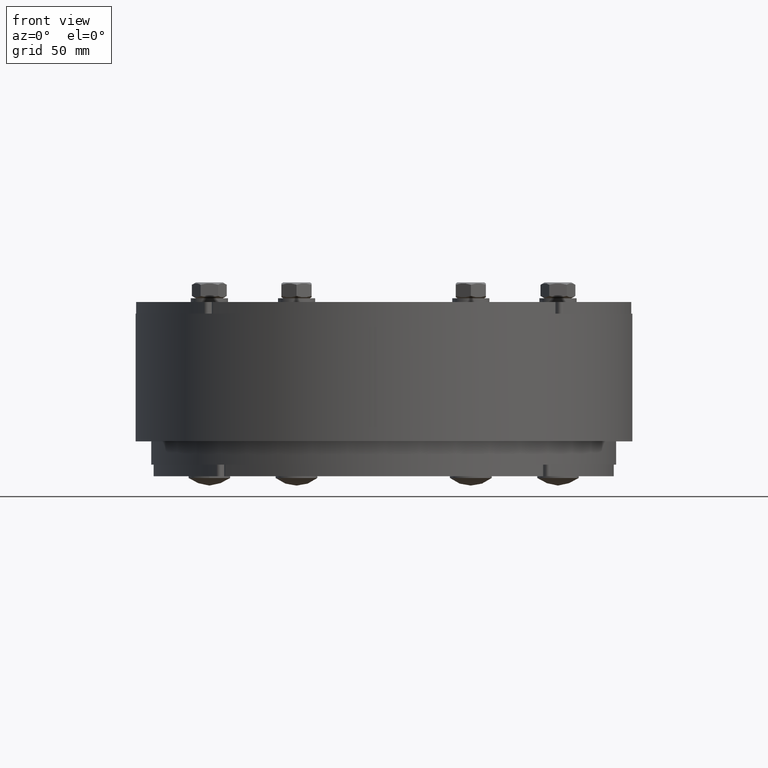
[diagram: clean part render]
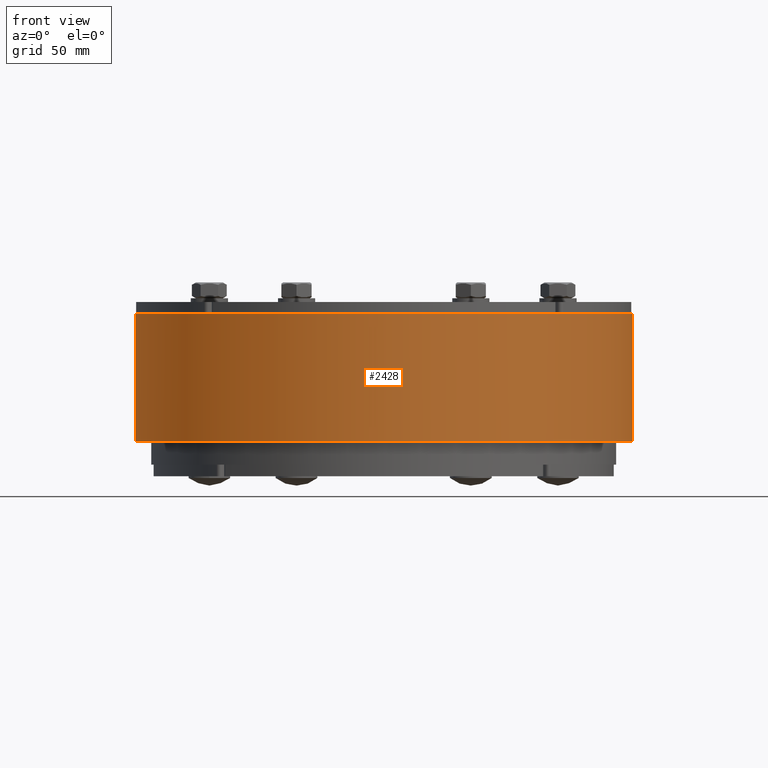
[diagram: same view with one face highlighted and labeled with its STEP entity id]
A machine part, front view. The second image highlights one B-rep face of the part: STEP entity #2428.
In plain terms, the highlighted cylindrical surface (bore or boss wall) has radius 107 mm, axis along (0, 0, -1).
Its self-contained STEP definition (entity closure, byte-faithful):
#2401=CARTESIAN_POINT('',(0.0,0.0,0.0));
#2402=DIRECTION('',(0.0,0.0,-1.0));
#2403=DIRECTION('',(-1.0,0.0,0.0));
#2404=AXIS2_PLACEMENT_3D('',#2401,#2402,#2403);
#2405=CYLINDRICAL_SURFACE('',#2404,107.00000000000001);
#2406=CARTESIAN_POINT('',(107.00000000000001,1.310372E-014,-55.0));
#2407=VERTEX_POINT('',#2406);
#2408=CARTESIAN_POINT('',(0.0,0.0,-55.0));
#2409=DIRECTION('',(0.0,0.0,-1.0));
#2410=DIRECTION('',(-1.0,0.0,0.0));
#2411=AXIS2_PLACEMENT_3D('',#2408,#2409,#2410);
#2412=CIRCLE('',#2411,107.00000000000001);
#2413=EDGE_CURVE('',#2407,#2407,#2412,.T.);
#2414=ORIENTED_EDGE('',*,*,#2413,.F.);
#2415=EDGE_LOOP('',(#2414));
#2416=FACE_OUTER_BOUND('',#2415,.T.);
#2417=CARTESIAN_POINT('',(107.00000000000001,1.310372E-014,0.0));
#2418=VERTEX_POINT('',#2417);
#2419=CARTESIAN_POINT('',(0.0,0.0,0.0));
#2420=DIRECTION('',(0.0,0.0,-1.0));
#2421=DIRECTION('',(-1.0,0.0,0.0));
#2422=AXIS2_PLACEMENT_3D('',#2419,#2420,#2421);
#2423=CIRCLE('',#2422,107.00000000000001);
#2424=EDGE_CURVE('',#2418,#2418,#2423,.T.);
#2425=ORIENTED_EDGE('',*,*,#2424,.T.);
#2426=EDGE_LOOP('',(#2425));
#2427=FACE_BOUND('',#2426,.T.);
#2428=ADVANCED_FACE('',(#2416,#2427),#2405,.T.);